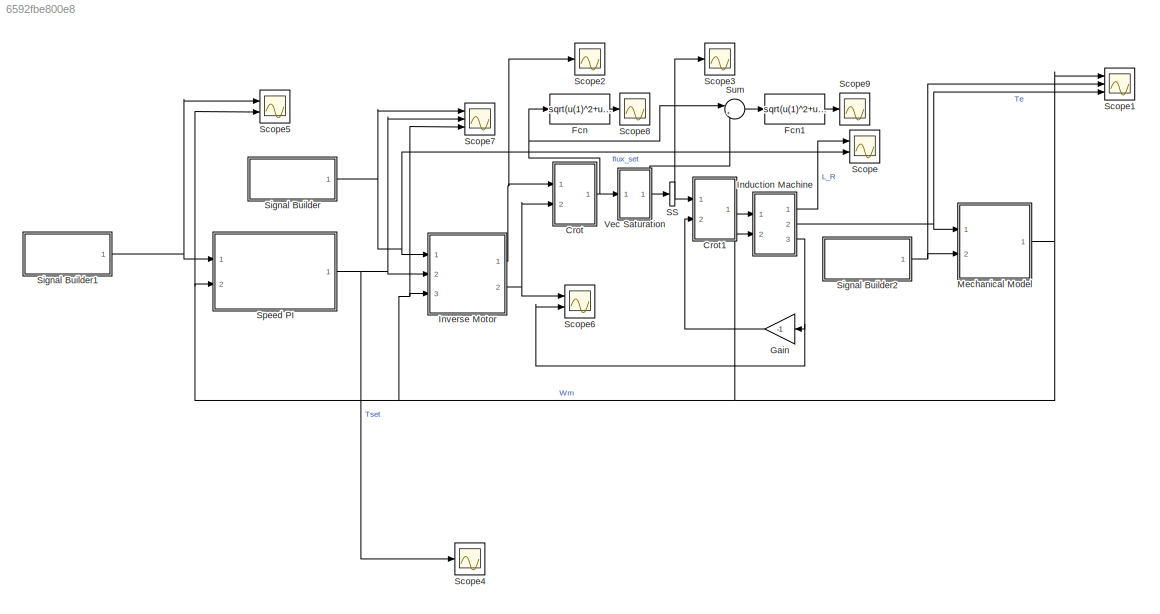
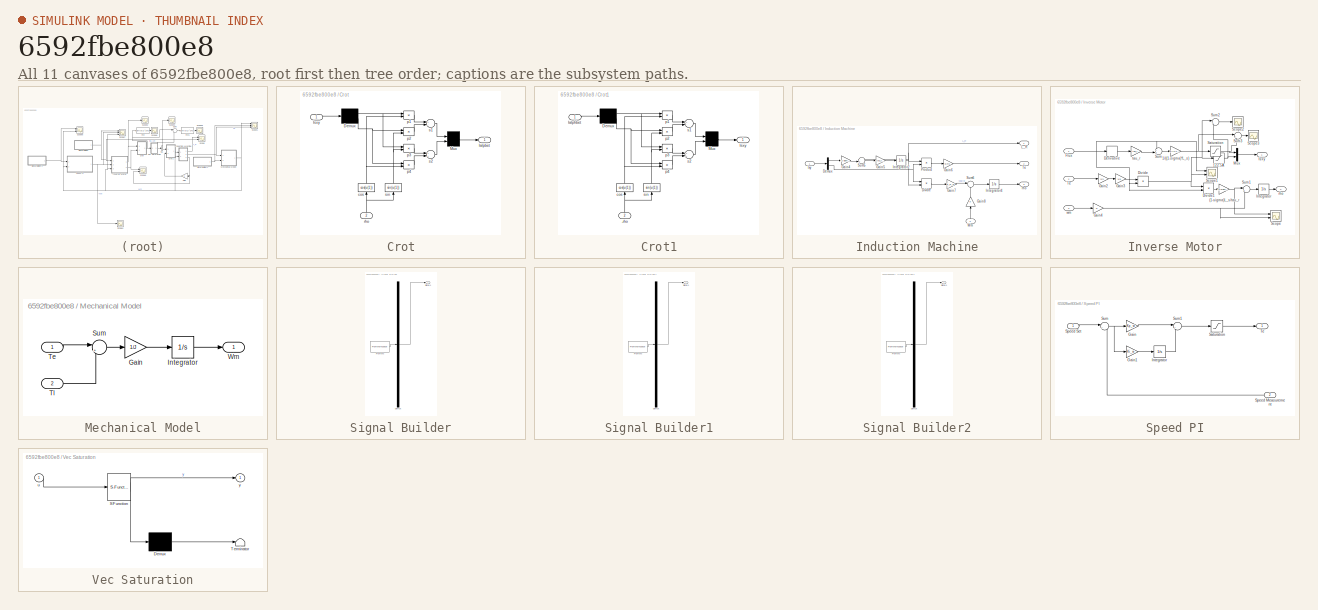
[diagram: thumbnail index - all 11 canvases of the model, root first then tree order]
MODEL slx_6592fbe800e8
KIND model
CONFIG AbsTol = auto
CONFIG EnableMultiTasking = off
CONFIG FixedStep = auto
CONFIG MaxStep = auto
CONFIG MinStep = auto
CONFIG RelTol = 1e-3
CONFIG SampleTimeConstraint = Unconstrained
CONFIG Solver = VariableStepAuto
CONFIG SolverName = VariableStepAuto
CONFIG StartTime = 0.0
CONFIG StopTime = runtime
BLOCK [SubSystem] Crot
  Ports = [2, 1]
  RequestExecContextInheritance = off
BLOCK [Demux] Crot/Demux
  Outputs = 2
  Ports = [1, 2]
BLOCK [Outport] Crot/Ialpbet
  IconDisplay = Port number
BLOCK [Inport] Crot/Isxy
  IconDisplay = Port number
BLOCK [Mux] Crot/Mux
  Inputs = 2
  Ports = [2, 1]
BLOCK [Fcn] Crot/cos
  Expr = cos(u(1))
BLOCK [Product] Crot/p1
  Ports = [2, 1]
BLOCK [Product] Crot/p2
  Ports = [2, 1]
BLOCK [Product] Crot/p3
  Ports = [2, 1]
BLOCK [Product] Crot/p4
  Ports = [2, 1]
BLOCK [Inport] Crot/rho
  IconDisplay = Port number
  Port = 2
BLOCK [Sum] Crot/s1
  Inputs = +-
  Ports = [2, 1]
BLOCK [Sum] Crot/s2
  Ports = [2, 1]
BLOCK [Fcn] Crot/sin
  Expr = sin(u(1))
BLOCK [SubSystem] Crot1
  Ports = [2, 1]
  RequestExecContextInheritance = off
BLOCK [Inport] Crot1/-rho
  IconDisplay = Port number
  Port = 2
BLOCK [Demux] Crot1/Demux
  Outputs = 2
  Ports = [1, 2]
BLOCK [Inport] Crot1/Ialphbet
  IconDisplay = Port number
BLOCK [Outport] Crot1/Isxy
  IconDisplay = Port number
BLOCK [Mux] Crot1/Mux
  Inputs = 2
  Ports = [2, 1]
BLOCK [Fcn] Crot1/cos
  Expr = cos(u(1))
BLOCK [Product] Crot1/p1
  Ports = [2, 1]
BLOCK [Product] Crot1/p2
  Ports = [2, 1]
BLOCK [Product] Crot1/p3
  Ports = [2, 1]
BLOCK [Product] Crot1/p4
  Ports = [2, 1]
BLOCK [Sum] Crot1/s1
  Inputs = +-
  Ports = [2, 1]
BLOCK [Sum] Crot1/s2
  Ports = [2, 1]
BLOCK [Fcn] Crot1/sin
  Expr = sin(u(1))
BLOCK [Fcn] Fcn
  Expr = sqrt(u(1)^2+u(2)^2)
BLOCK [Fcn] Fcn1
  Expr = sqrt(u(1)^2+u(2)^2)
BLOCK [Gain] Gain
  Gain = -1
  OutDataTypeStr = Inherit: Inherit via internal rule
  ParamDataTypeStr = Inherit: Inherit via internal rule
  SaturateOnIntegerOverflow = off
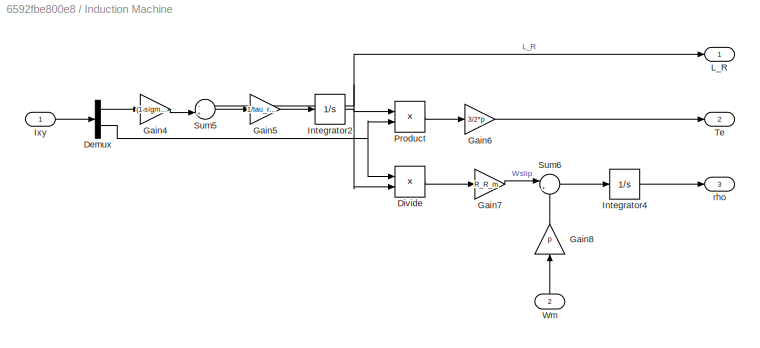
BLOCK [SubSystem] Induction Machine
  Ports = [2, 3]
  RequestExecContextInheritance = off
BLOCK [Demux] Induction Machine/Demux
  DisplayOption = bar
  Outputs = 2
  Ports = [1, 2]
BLOCK [Product] Induction Machine/Divide
  InputSameDT = off
  Inputs = */
  OutDataTypeStr = Inherit: Inherit via internal rule
  Ports = [2, 1]
  RndMeth = Floor
  SaturateOnIntegerOverflow = off
BLOCK [Gain] Induction Machine/Gain4
  Gain = (1-sigma)*L_s
  OutDataTypeStr = Inherit: Inherit via internal rule
  ParamDataTypeStr = Inherit: Inherit via internal rule
  SaturateOnIntegerOverflow = off
BLOCK [Gain] Induction Machine/Gain5
  Gain = 1/tau_r_m
  OutDataTypeStr = Inherit: Inherit via internal rule
  ParamDataTypeStr = Inherit: Inherit via internal rule
  SaturateOnIntegerOverflow = off
BLOCK [Gain] Induction Machine/Gain6
  Gain = 3/2*p
  OutDataTypeStr = Inherit: Inherit via internal rule
  ParamDataTypeStr = Inherit: Inherit via internal rule
  SaturateOnIntegerOverflow = off
BLOCK [Gain] Induction Machine/Gain7
  Gain = R_R_m
  OutDataTypeStr = Inherit: Inherit via internal rule
  ParamDataTypeStr = Inherit: Inherit via internal rule
  SaturateOnIntegerOverflow = off
BLOCK [Gain] Induction Machine/Gain8
  Gain = p
  OutDataTypeStr = Inherit: Inherit via internal rule
  ParamDataTypeStr = Inherit: Inherit via internal rule
  SaturateOnIntegerOverflow = off
BLOCK [Integrator] Induction Machine/Integrator2
  InitialCondition = L0
  Ports = [1, 1]
BLOCK [Integrator] Induction Machine/Integrator4
  InitialCondition = rho0
  Ports = [1, 1]
BLOCK [Inport] Induction Machine/Ixy
  IconDisplay = Port number
BLOCK [Outport] Induction Machine/L_R
  IconDisplay = Port number
BLOCK [Product] Induction Machine/Product
  InputSameDT = off
  OutDataTypeStr = Inherit: Inherit via internal rule
  Ports = [2, 1]
  RndMeth = Floor
  SaturateOnIntegerOverflow = off
BLOCK [Sum] Induction Machine/Sum5
  IconShape = round
  InputSameDT = off
  Inputs = -+|
  OutDataTypeStr = Inherit: Inherit via internal rule
  Ports = [2, 1]
  SaturateOnIntegerOverflow = off
BLOCK [Sum] Induction Machine/Sum6
  IconShape = round
  InputSameDT = off
  Inputs = |++
  OutDataTypeStr = Inherit: Inherit via internal rule
  Ports = [2, 1]
  SaturateOnIntegerOverflow = off
BLOCK [Outport] Induction Machine/Te
  IconDisplay = Port number
  Port = 2
BLOCK [Inport] Induction Machine/Wm
  IconDisplay = Port number
  Port = 2
BLOCK [Outport] Induction Machine/rho
  IconDisplay = Port number
  Port = 3
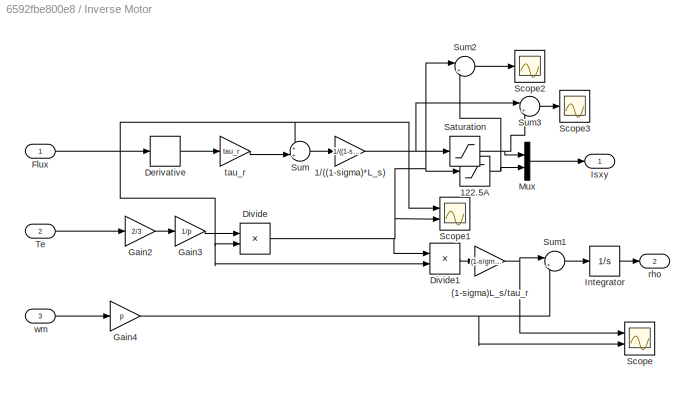
BLOCK [SubSystem] Inverse Motor
  Ports = [3, 2]
  RequestExecContextInheritance = off
BLOCK [Gain] Inverse Motor/(1-sigma)L_s//tau_r
  Gain = (1-sigma)*L_s/tau_r
  OutDataTypeStr = Inherit: Inherit via internal rule
  ParamDataTypeStr = Inherit: Inherit via internal rule
  SaturateOnIntegerOverflow = off
BLOCK [Gain] Inverse Motor/1//((1-sigma)*L_s)
  Gain = 1/((1-sigma)*L_s)
  OutDataTypeStr = Inherit: Inherit via internal rule
  ParamDataTypeStr = Inherit: Inherit via internal rule
  SaturateOnIntegerOverflow = off
BLOCK [Saturate] Inverse Motor/122.5A
  InputPortMap = u0
  LowerLimit = -Imax
  Ports = [1, 1]
  UpperLimit = Imax
BLOCK [Derivative] Inverse Motor/Derivative
BLOCK [Product] Inverse Motor/Divide
  InputSameDT = off
  Inputs = */
  OutDataTypeStr = Inherit: Inherit via internal rule
  Ports = [2, 1]
  RndMeth = Floor
  SaturateOnIntegerOverflow = off
BLOCK [Product] Inverse Motor/Divide1
  InputSameDT = off
  Inputs = */
  OutDataTypeStr = Inherit: Inherit via internal rule
  Ports = [2, 1]
  RndMeth = Floor
  SaturateOnIntegerOverflow = off
BLOCK [Inport] Inverse Motor/Flux
  IconDisplay = Port number
BLOCK [Gain] Inverse Motor/Gain2
  Gain = 2/3
  OutDataTypeStr = Inherit: Inherit via internal rule
  ParamDataTypeStr = Inherit: Inherit via internal rule
  SaturateOnIntegerOverflow = off
BLOCK [Gain] Inverse Motor/Gain3
  Gain = 1/p
  OutDataTypeStr = Inherit: Inherit via internal rule
  ParamDataTypeStr = Inherit: Inherit via internal rule
  SaturateOnIntegerOverflow = off
BLOCK [Gain] Inverse Motor/Gain4
  Gain = p
  OutDataTypeStr = Inherit: Inherit via internal rule
  ParamDataTypeStr = Inherit: Inherit via internal rule
  SaturateOnIntegerOverflow = off
BLOCK [Integrator] Inverse Motor/Integrator
  Ports = [1, 1]
BLOCK [Outport] Inverse Motor/Isxy 
  IconDisplay = Port number
BLOCK [Mux] Inverse Motor/Mux
  DisplayOption = bar
  Inputs = 2
  Ports = [2, 1]
BLOCK [Saturate] Inverse Motor/Saturation
  InputPortMap = u0
  LowerLimit = -Imax
  Ports = [1, 1]
  UpperLimit = Imax
BLOCK [Scope] Inverse Motor/Scope
  Floating = off
  NumInputPorts = 2
  Ports = [2]
  ScopeSpecificationString = Simulink.scopes.TimeScopeBlockCfg('CurrentConfiguration', extmgr.ConfigurationSet(extmgr.Configuration('Core','General UI',true),extmgr.Configuration('Core','Source UI',true),extmgr.Configuration('Sources','WiredSimulink',true,'DataLoggingVariableName','ScopeData7'),extmgr.Configuration('Visuals','Time Domain',true,'SerializedDisplays',{struct('MinYLimReal','-1231817954.1152','MaxYLimReal','110863...<+1444ch>
BLOCK [Scope] Inverse Motor/Scope1
  Floating = off
  NumInputPorts = 2
  Ports = [2]
  ScopeSpecificationString = Simulink.scopes.TimeScopeBlockCfg('CurrentConfiguration', extmgr.ConfigurationSet(extmgr.Configuration('Core','General UI',true),extmgr.Configuration('Core','Source UI',true),extmgr.Configuration('Sources','WiredSimulink',true,'DataLoggingVariableName','ScopeData8'),extmgr.Configuration('Visuals','Time Domain',true,'SerializedDisplays',{struct('MinYLimReal','-23.91151','MaxYLimReal','137.91464','Y...<+1382ch>
BLOCK [Scope] Inverse Motor/Scope2
  Floating = off
  NumInputPorts = 1
  Ports = [1]
  ScopeSpecificationString = Simulink.scopes.TimeScopeBlockCfg('CurrentConfiguration', extmgr.ConfigurationSet(extmgr.Configuration('Core','General UI',true),extmgr.Configuration('Core','Source UI',true),extmgr.Configuration('Sources','WiredSimulink',true,'DataLoggingVariableName','ScopeData4'),extmgr.Configuration('Visuals','Time Domain',true,'SerializedDisplays',{struct('MinYLimReal','-1.00000','MaxYLimReal','1.00000','YLab...<+1392ch>
BLOCK [Scope] Inverse Motor/Scope3
  Floating = off
  NumInputPorts = 1
  Ports = [1]
  ScopeSpecificationString = Simulink.scopes.TimeScopeBlockCfg('CurrentConfiguration', extmgr.ConfigurationSet(extmgr.Configuration('Core','General UI',true),extmgr.Configuration('Core','Source UI',true),extmgr.Configuration('Sources','WiredSimulink',true,'DataLoggingVariableName','ScopeData5'),extmgr.Configuration('Visuals','Time Domain',true,'SerializedDisplays',{struct('MinYLimReal','-1.00000','MaxYLimReal','1.00000','YLab...<+1363ch>
BLOCK [Sum] Inverse Motor/Sum
  IconShape = round
  InputSameDT = off
  Inputs = ++|
  OutDataTypeStr = Inherit: Inherit via internal rule
  Ports = [2, 1]
  SaturateOnIntegerOverflow = off
BLOCK [Sum] Inverse Motor/Sum1
  IconShape = round
  InputSameDT = off
  Inputs = |++
  OutDataTypeStr = Inherit: Inherit via internal rule
  Ports = [2, 1]
  SaturateOnIntegerOverflow = off
BLOCK [Sum] Inverse Motor/Sum2
  IconShape = round
  InputSameDT = off
  Inputs = |+-
  OutDataTypeStr = Inherit: Inherit via internal rule
  Ports = [2, 1]
  SaturateOnIntegerOverflow = off
BLOCK [Sum] Inverse Motor/Sum3
  IconShape = round
  InputSameDT = off
  Inputs = |+-
  OutDataTypeStr = Inherit: Inherit via internal rule
  Ports = [2, 1]
  SaturateOnIntegerOverflow = off
BLOCK [Inport] Inverse Motor/Te
  IconDisplay = Port number
  Port = 2
BLOCK [Outport] Inverse Motor/rho
  IconDisplay = Port number
  Port = 2
BLOCK [Gain] Inverse Motor/tau_r
  Gain = tau_r
  OutDataTypeStr = Inherit: Inherit via internal rule
  ParamDataTypeStr = Inherit: Inherit via internal rule
  SaturateOnIntegerOverflow = off
BLOCK [Inport] Inverse Motor/wm
  IconDisplay = Port number
  Port = 3
BLOCK [SubSystem] Mechanical Model
  Ports = [2, 1]
  RequestExecContextInheritance = off
BLOCK [Gain] Mechanical Model/Gain
  Gain = 1/J
  OutDataTypeStr = Inherit: Inherit via internal rule
  ParamDataTypeStr = Inherit: Inherit via internal rule
  SaturateOnIntegerOverflow = off
BLOCK [Integrator] Mechanical Model/Integrator
  InitialCondition = Wm0
  Ports = [1, 1]
BLOCK [Sum] Mechanical Model/Sum
  IconShape = round
  InputSameDT = off
  Inputs = |+-
  OutDataTypeStr = Inherit: Inherit via internal rule
  Ports = [2, 1]
  SaturateOnIntegerOverflow = off
BLOCK [Inport] Mechanical Model/Te
  IconDisplay = Port number
BLOCK [Inport] Mechanical Model/Tl
  IconDisplay = Port number
  Port = 2
BLOCK [Outport] Mechanical Model/Wm
  IconDisplay = Port number
BLOCK [SignalSpecification] SS
  Dimensions = [2 1]
BLOCK [Scope] Scope
  Floating = off
  NumInputPorts = 2
  Ports = [2]
  ScopeSpecificationString = Simulink.scopes.TimeScopeBlockCfg('CurrentConfiguration', extmgr.ConfigurationSet(extmgr.Configuration('Core','General UI',true),extmgr.Configuration('Core','Source UI',true),extmgr.Configuration('Sources','WiredSimulink',true,'DataLoggingVariableName','ScopeData1'),extmgr.Configuration('Visuals','Time Domain',true,'SerializedDisplays',{struct('MinYLimReal','-0.10235','MaxYLimReal','0.92216','YLab...<+1470ch>
BLOCK [Scope] Scope1
  Floating = off
  NumInputPorts = 3
  Ports = [3]
  ScopeSpecificationString = Simulink.scopes.TimeScopeBlockCfg('CurrentConfiguration', extmgr.ConfigurationSet(extmgr.Configuration('Core','General UI',true),extmgr.Configuration('Core','Source UI',true),extmgr.Configuration('Sources','WiredSimulink',true,'DataLoggingVariableName','ScopeData1'),extmgr.Configuration('Visuals','Time Domain',true,'SerializedDisplays',{struct('MinYLimReal','-37.54152','MaxYLimReal','337.87365','Y...<+2459ch>
BLOCK [Scope] Scope2
  Floating = off
  NumInputPorts = 1
  Ports = [1]
  ScopeSpecificationString = Simulink.scopes.TimeScopeBlockCfg('CurrentConfiguration', extmgr.ConfigurationSet(extmgr.Configuration('Core','General UI',true),extmgr.Configuration('Core','Source UI',true),extmgr.Configuration('Sources','WiredSimulink',true,'DataLoggingVariableName','ScopeData2'),extmgr.Configuration('Visuals','Time Domain',true,'SerializedDisplays',{struct('MinYLimReal','-24.1135','MaxYLimReal','138.79039','YL...<+1478ch>
BLOCK [Scope] Scope3
  Floating = off
  NumInputPorts = 1
  Ports = [1]
  ScopeSpecificationString = Simulink.scopes.TimeScopeBlockCfg('CurrentConfiguration', extmgr.ConfigurationSet(extmgr.Configuration('Core','General UI',true),extmgr.Configuration('Core','Source UI',true),extmgr.Configuration('Sources','WiredSimulink',true,'DataLoggingVariableName','ScopeData3'),extmgr.Configuration('Visuals','Time Domain',true,'SerializedDisplays',{struct('MinYLimReal','-122.91568','MaxYLimReal','130.41585','...<+1457ch>
BLOCK [Scope] Scope4
  Floating = off
  NumInputPorts = 1
  Ports = [1]
  ScopeSpecificationString = Simulink.scopes.TimeScopeBlockCfg('CurrentConfiguration', extmgr.ConfigurationSet(extmgr.Configuration('Core','General UI',true),extmgr.Configuration('Core','Source UI',true),extmgr.Configuration('Sources','WiredSimulink',true,'DataLoggingVariableName','ScopeData4'),extmgr.Configuration('Visuals','Time Domain',true,'SerializedDisplays',{struct('MinYLimReal','-29.26769','MaxYLimReal','168.80752','Y...<+1400ch>
BLOCK [Scope] Scope5
  Floating = off
  NumInputPorts = 2
  Ports = [2]
  ScopeSpecificationString = Simulink.scopes.TimeScopeBlockCfg('CurrentConfiguration', extmgr.ConfigurationSet(extmgr.Configuration('Core','General UI',true),extmgr.Configuration('Core','Source UI',true),extmgr.Configuration('Sources','WiredSimulink',true,'DataLoggingVariableName','ScopeData5'),extmgr.Configuration('Visuals','Time Domain',true,'SerializedDisplays',{struct('MinYLimReal','-429.92549','MaxYLimReal','381.10283','...<+1393ch>
BLOCK [Scope] Scope6
  Floating = off
  NumInputPorts = 2
  Ports = [2]
  ScopeSpecificationString = Simulink.scopes.TimeScopeBlockCfg('CurrentConfiguration', extmgr.ConfigurationSet(extmgr.Configuration('Core','General UI',true),extmgr.Configuration('Core','Source UI',true),extmgr.Configuration('Sources','WiredSimulink',true,'DataLoggingVariableName','ScopeData6'),extmgr.Configuration('Visuals','Time Domain',true,'SerializedDisplays',{struct('MinYLimReal','89.03915','MaxYLimReal','122.80054','YL...<+1448ch>
BLOCK [Scope] Scope7
  Floating = off
  NumInputPorts = 3
  Ports = [3]
  ScopeSpecificationString = Simulink.scopes.TimeScopeBlockCfg('CurrentConfiguration', extmgr.ConfigurationSet(extmgr.Configuration('Core','General UI',true),extmgr.Configuration('Core','Source UI',true),extmgr.Configuration('Sources','WiredSimulink',true,'DataLoggingVariableName','ScopeData1'),extmgr.Configuration('Visuals','Time Domain',true,'SerializedDisplays',{struct('MinYLimReal','-0.10087','MaxYLimReal','0.91787','YLab...<+2764ch>
BLOCK [Scope] Scope8
  Floating = off
  NumInputPorts = 1
  Ports = [1]
  ScopeSpecificationString = Simulink.scopes.TimeScopeBlockCfg('CurrentConfiguration', extmgr.ConfigurationSet(extmgr.Configuration('Core','General UI',true),extmgr.Configuration('Core','Source UI',true),extmgr.Configuration('Sources','WiredSimulink',true,'DataLoggingVariableName','ScopeData2'),extmgr.Configuration('Visuals','Time Domain',true,'SerializedDisplays',{struct('MinYLimReal','-15.25681','MaxYLimReal','137.4377','YL...<+1394ch>
BLOCK [Scope] Scope9
  Floating = off
  NumInputPorts = 1
  Ports = [1]
  ScopeSpecificationString = Simulink.scopes.TimeScopeBlockCfg('CurrentConfiguration', extmgr.ConfigurationSet(extmgr.Configuration('Core','General UI',true),extmgr.Configuration('Core','Source UI',true),extmgr.Configuration('Sources','WiredSimulink',true,'DataLoggingVariableName','ScopeData3'),extmgr.Configuration('Visuals','Time Domain',true,'SerializedDisplays',{struct('MinYLimReal','-1.00000','MaxYLimReal','1.00000','YLab...<+1363ch>
BLOCK [SubSystem] Signal Builder
  ClipboardFcn = sigbuilder_block('clipboard');
  CloseFcn = sigbuilder_block('close');
  ContinueFcn = sigbuilder_block('continue');
  CopyFcn = sigbuilder_block('copy');
  DeleteFcn = sigbuilder_block('delete');
  LoadFcn = sigbuilder_block('load');
  MaskHideContents = on
  ModelCloseFcn = sigbuilder_block('modelClose');
  NameChangeFcn = sigbuilder_block('namechange');
  OpenFcn = sigbuilder_block('open',[0.75 30.75 718.5 715.5 ]);
  PauseFcn = sigbuilder_block('pause');
  Ports = [0, 1]
  PreSaveFcn = sigbuilder_block('preSave');
  RequestExecContextInheritance = off
  StartFcn = sigbuilder_block('start');
  StopFcn = sigbuilder_block('stop');
  Tag = STV Subsys
BLOCK [Demux] Signal Builder/Demux
  Outputs = 1
  Ports = [1, 1]
  Tag = STV Demux
BLOCK [FromWorkspace] Signal Builder/FromWs
  SampleTime = 0
  Tag = STV FromWs
  VariableName = tuvar
  ZeroCross = on
BLOCK [Outport] Signal Builder/Signal 1
  IconDisplay = Port number
  Tag = STV Outport
BLOCK [SubSystem] Signal Builder1
  ClipboardFcn = sigbuilder_block('clipboard');
  CloseFcn = sigbuilder_block('close');
  ContinueFcn = sigbuilder_block('continue');
  CopyFcn = sigbuilder_block('copy');
  DeleteFcn = sigbuilder_block('delete');
  LoadFcn = sigbuilder_block('load');
  MaskHideContents = on
  ModelCloseFcn = sigbuilder_block('modelClose');
  NameChangeFcn = sigbuilder_block('namechange');
  OpenFcn = sigbuilder_block('open',[437.6 199.2 550.4 400 ]);
  PauseFcn = sigbuilder_block('pause');
  Ports = [0, 1]
  PreSaveFcn = sigbuilder_block('preSave');
  RequestExecContextInheritance = off
  StartFcn = sigbuilder_block('start');
  StopFcn = sigbuilder_block('stop');
  Tag = STV Subsys
BLOCK [Demux] Signal Builder1/Demux
  Outputs = 1
  Ports = [1, 1]
  Tag = STV Demux
BLOCK [FromWorkspace] Signal Builder1/FromWs
  SampleTime = 0
  Tag = STV FromWs
  VariableName = tuvar
  ZeroCross = on
BLOCK [Outport] Signal Builder1/Signal 1
  IconDisplay = Port number
  Tag = STV Outport
BLOCK [SubSystem] Signal Builder2
  ClipboardFcn = sigbuilder_block('clipboard');
  CloseFcn = sigbuilder_block('close');
  ContinueFcn = sigbuilder_block('continue');
  CopyFcn = sigbuilder_block('copy');
  DeleteFcn = sigbuilder_block('delete');
  LoadFcn = sigbuilder_block('load');
  MaskHideContents = on
  ModelCloseFcn = sigbuilder_block('modelClose');
  NameChangeFcn = sigbuilder_block('namechange');
  OpenFcn = sigbuilder_block('open',[437.6 199.2 550.4 400 ]);
  PauseFcn = sigbuilder_block('pause');
  Ports = [0, 1]
  PreSaveFcn = sigbuilder_block('preSave');
  RequestExecContextInheritance = off
  StartFcn = sigbuilder_block('start');
  StopFcn = sigbuilder_block('stop');
  Tag = STV Subsys
BLOCK [Demux] Signal Builder2/Demux
  Outputs = 1
  Ports = [1, 1]
  Tag = STV Demux
BLOCK [FromWorkspace] Signal Builder2/FromWs
  SampleTime = 0
  Tag = STV FromWs
  VariableName = tuvar
  ZeroCross = on
BLOCK [Outport] Signal Builder2/Signal 1
  IconDisplay = Port number
  Tag = STV Outport
BLOCK [SubSystem] Speed PI
  Ports = [2, 1]
  RequestExecContextInheritance = off
BLOCK [Gain] Speed PI/Gain
  Gain = Kp_w
  OutDataTypeStr = Inherit: Inherit via internal rule
  ParamDataTypeStr = Inherit: Inherit via internal rule
  SaturateOnIntegerOverflow = off
BLOCK [Gain] Speed PI/Gain1
  Gain = Ki_w
  OutDataTypeStr = Inherit: Inherit via internal rule
  ParamDataTypeStr = Inherit: Inherit via internal rule
  SaturateOnIntegerOverflow = off
BLOCK [Integrator] Speed PI/Integrator
  LimitOutput = on
  LowerSaturationLimit = -122.5
  Ports = [1, 1]
  UpperSaturationLimit = 122.5
BLOCK [Saturate] Speed PI/Saturation
  InputPortMap = u0
  LowerLimit = -122.5
  Ports = [1, 1]
  UpperLimit = 149
BLOCK [Inport] Speed PI/Speed Measurement
  IconDisplay = Port number
  Port = 2
BLOCK [Inport] Speed PI/Speed Set
  IconDisplay = Port number
BLOCK [Sum] Speed PI/Sum
  IconShape = round
  InputSameDT = off
  Inputs = |+-
  OutDataTypeStr = Inherit: Inherit via internal rule
  Ports = [2, 1]
  SaturateOnIntegerOverflow = off
BLOCK [Sum] Speed PI/Sum1
  IconShape = round
  InputSameDT = off
  Inputs = |++
  OutDataTypeStr = Inherit: Inherit via internal rule
  Ports = [2, 1]
  SaturateOnIntegerOverflow = off
BLOCK [Outport] Speed PI/Te
  IconDisplay = Port number
BLOCK [Sum] Sum
  IconShape = round
  InputSameDT = off
  Inputs = |+-
  OutDataTypeStr = Inherit: Inherit via internal rule
  Ports = [2, 1]
  SaturateOnIntegerOverflow = off
BLOCK [SubSystem] Vec Saturation
  ErrorFcn = Stateflow.Translate.translate
  PermitHierarchicalResolution = ExplicitOnly
  Ports = [1, 1]
  RequestExecContextInheritance = off
  SFBlockType = MATLAB Function
  TreatAsAtomicUnit = on
BLOCK [Demux] Vec Saturation/ Demux 
  Outputs = 1
  Ports = [1, 1]
BLOCK [S-Function] Vec Saturation/ SFunction 
  EnableBusSupport = on
  FunctionName = sf_sfun
  Parameters = Imax
  PortCounts = [1 2]
  Ports = [1, 2]
  SFcnIsStateOwnerBlock = off
  SFunctionDeploymentMode = off
  Tag = Stateflow S-Function Home_5_4G 2
BLOCK [Terminator] Vec Saturation/ Terminator 
BLOCK [Inport] Vec Saturation/u
  IconDisplay = Port number
BLOCK [Outport] Vec Saturation/y
  IconDisplay = Port number
NET Crot/Demux:1 -> Crot/p1:1, Crot/p3:1
NET Crot/Demux:2 -> Crot/p2:1, Crot/p4:1
LINE Crot/Isxy:1 -> Crot/Demux:1
LINE Crot/Mux:1 -> Crot/Ialpbet:1
NET Crot/cos:1 -> Crot/p1:2, Crot/p4:2
LINE Crot/p1:1 -> Crot/s1:1
LINE Crot/p2:1 -> Crot/s1:2
LINE Crot/p3:1 -> Crot/s2:1
LINE Crot/p4:1 -> Crot/s2:2
NET Crot/rho:1 -> Crot/cos:1, Crot/sin:1
LINE Crot/s1:1 -> Crot/Mux:1
LINE Crot/s2:1 -> Crot/Mux:2
NET Crot/sin:1 -> Crot/p2:2, Crot/p3:2
NET Crot1/-rho:1 -> Crot1/cos:1, Crot1/sin:1
NET Crot1/Demux:1 -> Crot1/p1:1, Crot1/p3:1
NET Crot1/Demux:2 -> Crot1/p2:1, Crot1/p4:1
LINE Crot1/Ialphbet:1 -> Crot1/Demux:1
LINE Crot1/Mux:1 -> Crot1/Isxy:1
NET Crot1/cos:1 -> Crot1/p1:2, Crot1/p4:2
LINE Crot1/p1:1 -> Crot1/s1:1
LINE Crot1/p2:1 -> Crot1/s1:2
LINE Crot1/p3:1 -> Crot1/s2:1
LINE Crot1/p4:1 -> Crot1/s2:2
LINE Crot1/s1:1 -> Crot1/Mux:1
LINE Crot1/s2:1 -> Crot1/Mux:2
NET Crot1/sin:1 -> Crot1/p2:2, Crot1/p3:2
LINE Crot1:1 -> Induction Machine:1
NET Crot:1 -> Fcn:1, Sum:1, Vec Saturation:1
LINE Fcn1:1 -> Scope9:1
LINE Fcn:1 -> Scope8:1
LINE Gain:1 -> Crot1:2
LINE Induction Machine/Demux:1 -> Induction Machine/Gain4:1
NET Induction Machine/Demux:2 -> Induction Machine/Divide:1, Induction Machine/Product:2
LINE Induction Machine/Divide:1 -> Induction Machine/Gain7:1
LINE Induction Machine/Gain4:1 -> Induction Machine/Sum5:2
LINE Induction Machine/Gain5:1 -> Induction Machine/Integrator2:1
LINE Induction Machine/Gain6:1 -> Induction Machine/Te:1
LINE Induction Machine/Gain7:1 -> Induction Machine/Sum6:1
LINE Induction Machine/Gain8:1 -> Induction Machine/Sum6:2
NET Induction Machine/Integrator2:1 -> Induction Machine/Divide:2, Induction Machine/L_R:1, Induction Machine/Product:1, Induction Machine/Sum5:1
LINE Induction Machine/Integrator4:1 -> Induction Machine/rho:1
LINE Induction Machine/Ixy:1 -> Induction Machine/Demux:1
LINE Induction Machine/Product:1 -> Induction Machine/Gain6:1
LINE Induction Machine/Sum5:1 -> Induction Machine/Gain5:1
LINE Induction Machine/Sum6:1 -> Induction Machine/Integrator4:1
LINE Induction Machine/Wm:1 -> Induction Machine/Gain8:1
LINE Induction Machine:1 -> Scope:1
NET Induction Machine:2 -> Mechanical Model:1, Scope1:3
NET Induction Machine:3 -> Gain:1, Scope6:2
NET Inverse Motor/(1-sigma)L_s//tau_r:1 -> Inverse Motor/Scope:1, Inverse Motor/Sum1:1
NET Inverse Motor/1//((1-sigma)*L_s):1 -> Inverse Motor/Saturation:1, Inverse Motor/Sum3:1
NET Inverse Motor/122.5A:1 -> Inverse Motor/Mux:2, Inverse Motor/Sum2:2
LINE Inverse Motor/Derivative:1 -> Inverse Motor/tau_r:1
LINE Inverse Motor/Divide1:1 -> Inverse Motor/(1-sigma)L_s//tau_r:1
NET Inverse Motor/Divide:1 -> Inverse Motor/122.5A:1, Inverse Motor/Divide1:1, Inverse Motor/Scope1:2, Inverse Motor/Sum2:1
NET Inverse Motor/Flux:1 -> Inverse Motor/Derivative:1, Inverse Motor/Divide1:2, Inverse Motor/Divide:2, Inverse Motor/Scope1:1, Inverse Motor/Sum:1
LINE Inverse Motor/Gain2:1 -> Inverse Motor/Gain3:1
LINE Inverse Motor/Gain3:1 -> Inverse Motor/Divide:1
NET Inverse Motor/Gain4:1 -> Inverse Motor/Scope:2, Inverse Motor/Sum1:2
LINE Inverse Motor/Integrator:1 -> Inverse Motor/rho:1
LINE Inverse Motor/Mux:1 -> Inverse Motor/Isxy :1
NET Inverse Motor/Saturation:1 -> Inverse Motor/Mux:1, Inverse Motor/Sum3:2
LINE Inverse Motor/Sum1:1 -> Inverse Motor/Integrator:1
LINE Inverse Motor/Sum2:1 -> Inverse Motor/Scope2:1
LINE Inverse Motor/Sum3:1 -> Inverse Motor/Scope3:1
LINE Inverse Motor/Sum:1 -> Inverse Motor/1//((1-sigma)*L_s):1
LINE Inverse Motor/Te:1 -> Inverse Motor/Gain2:1
LINE Inverse Motor/tau_r:1 -> Inverse Motor/Sum:2
LINE Inverse Motor/wm:1 -> Inverse Motor/Gain4:1
NET Inverse Motor:1 -> Crot:1, Scope2:1
NET Inverse Motor:2 -> Crot:2, Scope6:1
LINE Mechanical Model/Gain:1 -> Mechanical Model/Integrator:1
LINE Mechanical Model/Integrator:1 -> Mechanical Model/Wm:1
LINE Mechanical Model/Sum:1 -> Mechanical Model/Gain:1
LINE Mechanical Model/Te:1 -> Mechanical Model/Sum:1
LINE Mechanical Model/Tl:1 -> Mechanical Model/Sum:2
NET Mechanical Model:1 -> Induction Machine:2, Inverse Motor:3, Scope1:1, Scope5:2, Scope7:3, Speed PI:2
NET SS:1 -> Crot1:1, Scope3:1
NET Signal Builder1:1 -> Scope5:1, Speed PI:1
NET Signal Builder2:1 -> Mechanical Model:2, Scope1:2
NET Signal Builder:1 -> Inverse Motor:1, Scope7:1, Scope:2
LINE Speed PI/Gain1:1 -> Speed PI/Integrator:1
LINE Speed PI/Gain:1 -> Speed PI/Sum1:1
LINE Speed PI/Integrator:1 -> Speed PI/Sum1:2
LINE Speed PI/Saturation:1 -> Speed PI/Te:1
LINE Speed PI/Speed Measurement:1 -> Speed PI/Sum:2
LINE Speed PI/Speed Set:1 -> Speed PI/Sum:1
LINE Speed PI/Sum1:1 -> Speed PI/Saturation:1
NET Speed PI/Sum:1 -> Speed PI/Gain1:1, Speed PI/Gain:1
NET Speed PI:1 -> Inverse Motor:2, Scope4:1, Scope7:2
LINE Sum:1 -> Fcn1:1
NET Vec Saturation:1 -> SS:1, Sum:2
note: NET lines group one-source signal fan-out (src -> all destinations, sorted); 1:1 wires keep LINE
CHART Vec Saturation states=1 transitions=1
  STATE_LABEL 'eML_blk_kernel()'
  STATE_LABEL 'SCRIPT:\nfunction y = fcn(u,Imax)\ny = u;\nif u(1) >= Imax\n    u(1) = Imax;\nelseif u(1) <= -Imax\n    u(1) = Imax;\nend\nif u(2) >= Imax\n    u(2) = Imax;\nelseif u(2) <= -Imax\n    u(2) = Imax;\nend\n'
